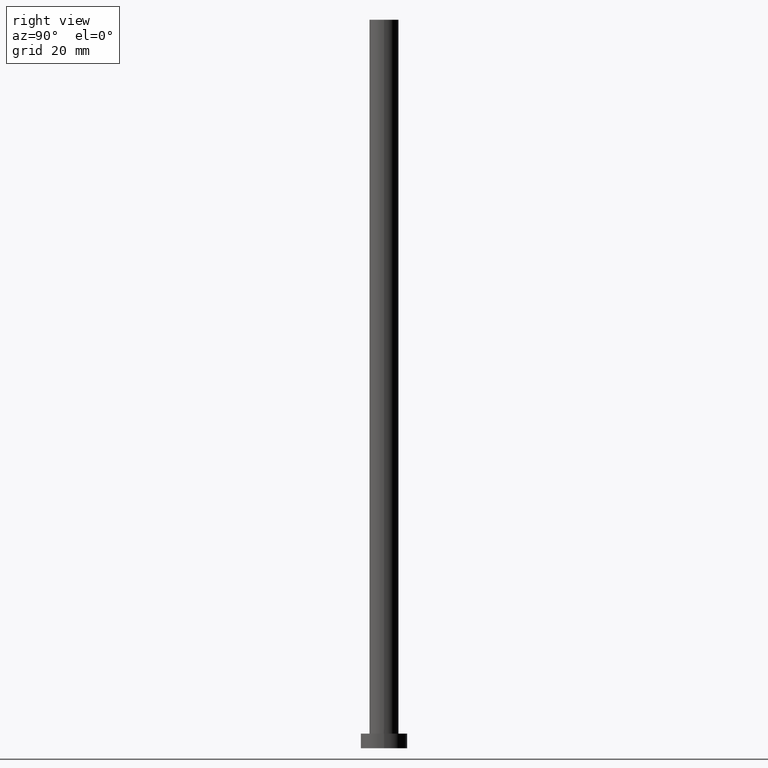
[diagram: clean part render]
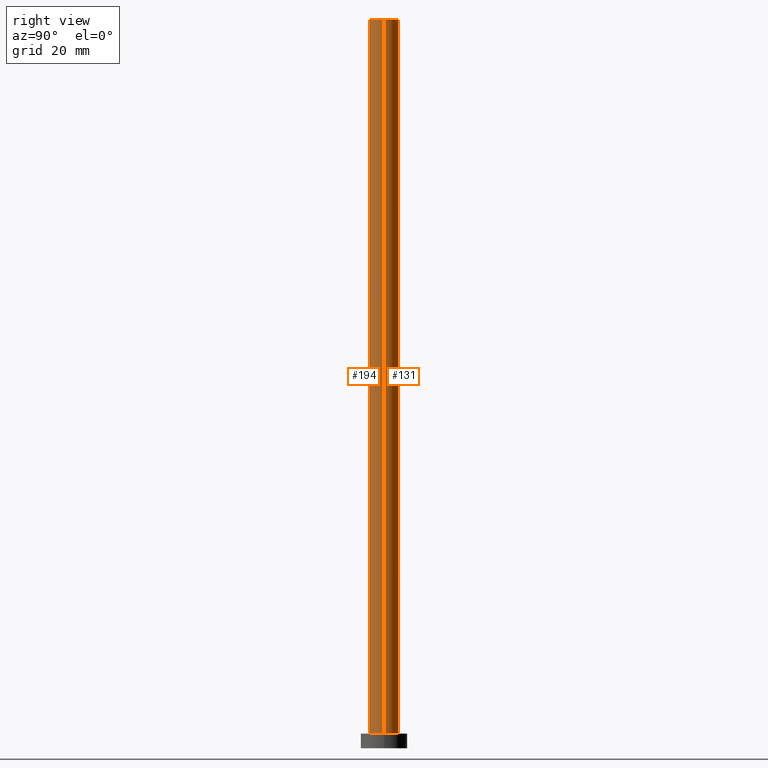
[diagram: same view with one multi-face feature highlighted, each face labeled with its STEP entity id]
A machine part, right view. The highlighted faces form ONE feature: a constant-radius fillet chain: 2 tangent blend faces with common blend radius 5 mm. The faces share edges in the B-rep.
Their STEP definitions:
[1] entity #194 (Cylinder):
#4 = CARTESIAN_POINT ( 'NONE',  ( 5.000000000000000000, 6.123233995736766282E-16, 5.000000000000000000 ) ) ;
#7 = VECTOR ( 'NONE', #29, 1000.000000000000000 ) ;
#14 = CYLINDRICAL_SURFACE ( 'NONE', #197, 5.000000000000000000 ) ;
#29 = DIRECTION ( 'NONE',  ( -0.000000000000000000, -0.000000000000000000, -1.000000000000000000 ) ) ;
#41 = VERTEX_POINT ( 'NONE', #4 ) ;
#46 = EDGE_CURVE ( 'NONE', #169, #242, #113, .T. ) ;
#56 = FACE_OUTER_BOUND ( 'NONE', #223, .T. ) ;
#70 = VECTOR ( 'NONE', #192, 1000.000000000000000 ) ;
#73 = CARTESIAN_POINT ( 'NONE',  ( 0.000000000000000000, 0.000000000000000000, 250.0000000000000000 ) ) ;
#74 = LINE ( 'NONE', #195, #70 ) ;
#78 = CARTESIAN_POINT ( 'NONE',  ( -5.000000000000000000, 0.000000000000000000, 250.0000000000000000 ) ) ;
#93 = ORIENTED_EDGE ( 'NONE', *, *, #180, .T. ) ;
#96 = DIRECTION ( 'NONE',  ( -1.000000000000000000, 0.000000000000000000, 0.000000000000000000 ) ) ;
#98 = DIRECTION ( 'NONE',  ( 1.000000000000000000, 0.000000000000000000, 0.000000000000000000 ) ) ;
#108 = CIRCLE ( 'NONE', #205, 5.000000000000000000 ) ;
#109 = CIRCLE ( 'NONE', #215, 5.000000000000000000 ) ;
#113 = LINE ( 'NONE', #147, #7 ) ;
#115 = DIRECTION ( 'NONE',  ( 1.000000000000000000, 0.000000000000000000, 0.000000000000000000 ) ) ;
#128 = ORIENTED_EDGE ( 'NONE', *, *, #158, .F. ) ;
#130 = VERTEX_POINT ( 'NONE', #185 ) ;
#135 = CARTESIAN_POINT ( 'NONE',  ( -5.000000000000000000, 0.000000000000000000, 5.000000000000000000 ) ) ;
#147 = CARTESIAN_POINT ( 'NONE',  ( -5.000000000000000000, 0.000000000000000000, 250.0000000000000000 ) ) ;
#155 = DIRECTION ( 'NONE',  ( 0.000000000000000000, 0.000000000000000000, 1.000000000000000000 ) ) ;
#158 = EDGE_CURVE ( 'NONE', #130, #41, #74, .T. ) ;
#169 = VERTEX_POINT ( 'NONE', #78 ) ;
#170 = ORIENTED_EDGE ( 'NONE', *, *, #175, .F. ) ;
#175 = EDGE_CURVE ( 'NONE', #169, #130, #108, .T. ) ;
#180 = EDGE_CURVE ( 'NONE', #242, #41, #109, .T. ) ;
#185 = CARTESIAN_POINT ( 'NONE',  ( 5.000000000000000000, 6.123233995736766282E-16, 250.0000000000000000 ) ) ;
#192 = DIRECTION ( 'NONE',  ( -0.000000000000000000, -0.000000000000000000, -1.000000000000000000 ) ) ;
#194 = ADVANCED_FACE ( 'NONE', ( #56 ), #14, .T. ) ;
#195 = CARTESIAN_POINT ( 'NONE',  ( 5.000000000000000000, 6.123233995736766282E-16, 250.0000000000000000 ) ) ;
#197 = AXIS2_PLACEMENT_3D ( 'NONE', #73, #216, #96 ) ;
#205 = AXIS2_PLACEMENT_3D ( 'NONE', #248, #155, #98 ) ;
#215 = AXIS2_PLACEMENT_3D ( 'NONE', #250, #229, #115 ) ;
#216 = DIRECTION ( 'NONE',  ( -0.000000000000000000, -0.000000000000000000, -1.000000000000000000 ) ) ;
#222 = ORIENTED_EDGE ( 'NONE', *, *, #46, .T. ) ;
#223 = EDGE_LOOP ( 'NONE', ( #128, #170, #222, #93 ) ) ;
#229 = DIRECTION ( 'NONE',  ( 0.000000000000000000, 0.000000000000000000, 1.000000000000000000 ) ) ;
#242 = VERTEX_POINT ( 'NONE', #135 ) ;
#248 = CARTESIAN_POINT ( 'NONE',  ( 0.000000000000000000, 0.000000000000000000, 250.0000000000000000 ) ) ;
#250 = CARTESIAN_POINT ( 'NONE',  ( 0.000000000000000000, 0.000000000000000000, 5.000000000000000000 ) ) ;
[2] entity #131 (Cylinder):
#4 = CARTESIAN_POINT ( 'NONE',  ( 5.000000000000000000, 6.123233995736766282E-16, 5.000000000000000000 ) ) ;
#7 = VECTOR ( 'NONE', #29, 1000.000000000000000 ) ;
#8 = FACE_OUTER_BOUND ( 'NONE', #206, .T. ) ;
#9 = AXIS2_PLACEMENT_3D ( 'NONE', #173, #119, #99 ) ;
#10 = ORIENTED_EDGE ( 'NONE', *, *, #220, .F. ) ;
#29 = DIRECTION ( 'NONE',  ( -0.000000000000000000, -0.000000000000000000, -1.000000000000000000 ) ) ;
#41 = VERTEX_POINT ( 'NONE', #4 ) ;
#46 = EDGE_CURVE ( 'NONE', #169, #242, #113, .T. ) ;
#48 = AXIS2_PLACEMENT_3D ( 'NONE', #132, #245, #154 ) ;
#55 = AXIS2_PLACEMENT_3D ( 'NONE', #191, #247, #232 ) ;
#67 = CIRCLE ( 'NONE', #55, 5.000000000000000000 ) ;
#70 = VECTOR ( 'NONE', #192, 1000.000000000000000 ) ;
#74 = LINE ( 'NONE', #195, #70 ) ;
#78 = CARTESIAN_POINT ( 'NONE',  ( -5.000000000000000000, 0.000000000000000000, 250.0000000000000000 ) ) ;
#91 = CYLINDRICAL_SURFACE ( 'NONE', #48, 5.000000000000000000 ) ;
#99 = DIRECTION ( 'NONE',  ( 1.000000000000000000, 0.000000000000000000, 0.000000000000000000 ) ) ;
#113 = LINE ( 'NONE', #147, #7 ) ;
#119 = DIRECTION ( 'NONE',  ( 0.000000000000000000, 0.000000000000000000, 1.000000000000000000 ) ) ;
#129 = ORIENTED_EDGE ( 'NONE', *, *, #158, .T. ) ;
#130 = VERTEX_POINT ( 'NONE', #185 ) ;
#131 = ADVANCED_FACE ( 'NONE', ( #8 ), #91, .T. ) ;
#132 = CARTESIAN_POINT ( 'NONE',  ( 0.000000000000000000, 0.000000000000000000, 250.0000000000000000 ) ) ;
#135 = CARTESIAN_POINT ( 'NONE',  ( -5.000000000000000000, 0.000000000000000000, 5.000000000000000000 ) ) ;
#141 = ORIENTED_EDGE ( 'NONE', *, *, #46, .F. ) ;
#147 = CARTESIAN_POINT ( 'NONE',  ( -5.000000000000000000, 0.000000000000000000, 250.0000000000000000 ) ) ;
#154 = DIRECTION ( 'NONE',  ( -1.000000000000000000, 0.000000000000000000, 0.000000000000000000 ) ) ;
#158 = EDGE_CURVE ( 'NONE', #130, #41, #74, .T. ) ;
#169 = VERTEX_POINT ( 'NONE', #78 ) ;
#173 = CARTESIAN_POINT ( 'NONE',  ( 0.000000000000000000, 0.000000000000000000, 5.000000000000000000 ) ) ;
#183 = ORIENTED_EDGE ( 'NONE', *, *, #243, .T. ) ;
#185 = CARTESIAN_POINT ( 'NONE',  ( 5.000000000000000000, 6.123233995736766282E-16, 250.0000000000000000 ) ) ;
#191 = CARTESIAN_POINT ( 'NONE',  ( 0.000000000000000000, 0.000000000000000000, 250.0000000000000000 ) ) ;
#192 = DIRECTION ( 'NONE',  ( -0.000000000000000000, -0.000000000000000000, -1.000000000000000000 ) ) ;
#195 = CARTESIAN_POINT ( 'NONE',  ( 5.000000000000000000, 6.123233995736766282E-16, 250.0000000000000000 ) ) ;
#206 = EDGE_LOOP ( 'NONE', ( #10, #129, #183, #141 ) ) ;
#220 = EDGE_CURVE ( 'NONE', #130, #169, #67, .T. ) ;
#232 = DIRECTION ( 'NONE',  ( 1.000000000000000000, 0.000000000000000000, 0.000000000000000000 ) ) ;
#242 = VERTEX_POINT ( 'NONE', #135 ) ;
#243 = EDGE_CURVE ( 'NONE', #41, #242, #246, .T. ) ;
#245 = DIRECTION ( 'NONE',  ( -0.000000000000000000, -0.000000000000000000, -1.000000000000000000 ) ) ;
#246 = CIRCLE ( 'NONE', #9, 5.000000000000000000 ) ;
#247 = DIRECTION ( 'NONE',  ( 0.000000000000000000, 0.000000000000000000, 1.000000000000000000 ) ) ;